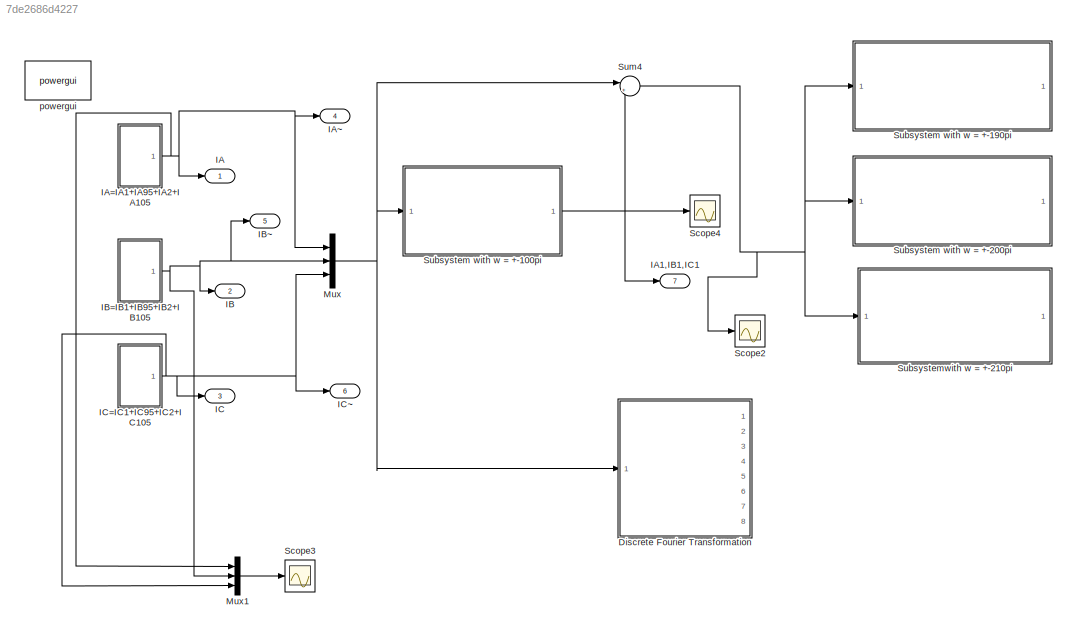
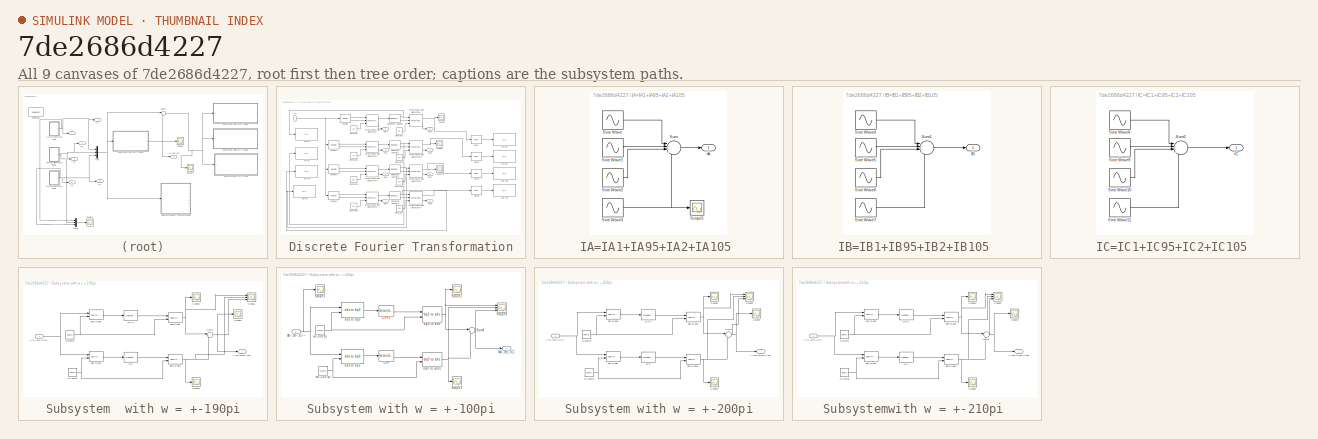
[diagram: thumbnail index - all 9 canvases of the model, root first then tree order]
MODEL slx_7de2686d4227
KIND model
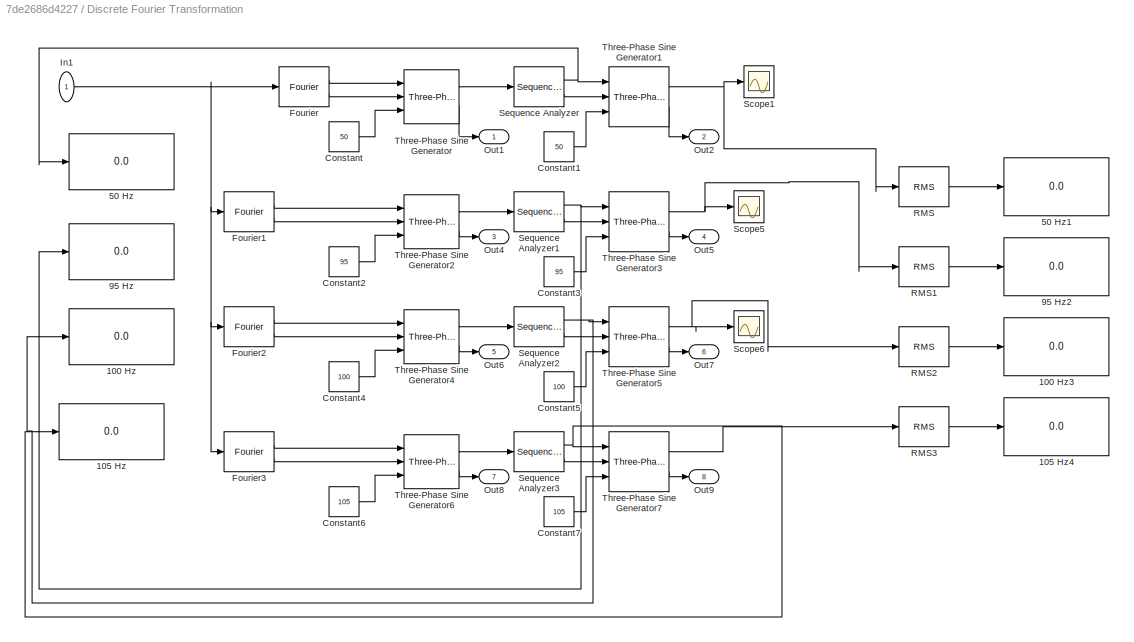
BLOCK [SubSystem] Discrete Fourier Transformation
  FunctionWithSeparateData = off
  MaskHideContents = off
  MinAlgLoopOccurrences = off
  Opaque = off
  Ports = [1, 8]
  PropExecContextOutsideSubsystem = off
  RTWSystemCode = Auto
  RequestExecContextInheritance = off
BLOCK [Display] Discrete Fourier Transformation/100 Hz
  Decimation = 1
  Lockdown = off
  Ports = [1]
BLOCK [Display] Discrete Fourier Transformation/100 Hz3
  Decimation = 1
  Lockdown = off
  Ports = [1]
BLOCK [Display] Discrete Fourier Transformation/105 Hz
  Decimation = 1
  Lockdown = off
  Ports = [1]
BLOCK [Display] Discrete Fourier Transformation/105 Hz4
  Decimation = 1
  Lockdown = off
  Ports = [1]
BLOCK [Display] Discrete Fourier Transformation/50 Hz
  Decimation = 1
  Lockdown = off
  Ports = [1]
BLOCK [Display] Discrete Fourier Transformation/50 Hz1
  Decimation = 1
  Lockdown = off
  Ports = [1]
BLOCK [Display] Discrete Fourier Transformation/95 Hz 
  Decimation = 1
  Lockdown = off
  Ports = [1]
BLOCK [Display] Discrete Fourier Transformation/95 Hz2
  Decimation = 1
  Lockdown = off
  Ports = [1]
BLOCK [Constant] Discrete Fourier Transformation/Constant
  Value = 50
BLOCK [Constant] Discrete Fourier Transformation/Constant1
  Value = 50
BLOCK [Constant] Discrete Fourier Transformation/Constant2
  Value = 95
BLOCK [Constant] Discrete Fourier Transformation/Constant3
  Value = 95
BLOCK [Constant] Discrete Fourier Transformation/Constant4
  Value = 100
BLOCK [Constant] Discrete Fourier Transformation/Constant5
  Value = 100
BLOCK [Constant] Discrete Fourier Transformation/Constant6
  Value = 105
BLOCK [Constant] Discrete Fourier Transformation/Constant7
  Value = 105
BLOCK [Reference] Discrete Fourier Transformation/Fourier  REF=powerlib_meascontrol/Measurements/Fourier
  Freq = 5
  InInit = [0, 0]
  Ports = [1, 2]
  SourceBlock = powerlib_meascontrol/Measurements/Fourier
  SourceType = Fourier
  Ts = 0
  n = 10
BLOCK [Reference] Discrete Fourier Transformation/Fourier1  REF=powerlib_meascontrol/Measurements/Fourier
  Freq = 5
  InInit = [0, 0]
  Ports = [1, 2]
  SourceBlock = powerlib_meascontrol/Measurements/Fourier
  SourceType = Fourier
  Ts = 0
  n = 19
BLOCK [Reference] Discrete Fourier Transformation/Fourier2  REF=powerlib_meascontrol/Measurements/Fourier
  Freq = 5
  InInit = [0, 0]
  Ports = [1, 2]
  SourceBlock = powerlib_meascontrol/Measurements/Fourier
  SourceType = Fourier
  Ts = 0
  n = 20
BLOCK [Reference] Discrete Fourier Transformation/Fourier3  REF=powerlib_meascontrol/Measurements/Fourier
  Freq = 5
  InInit = [0, 0]
  Ports = [1, 2]
  SourceBlock = powerlib_meascontrol/Measurements/Fourier
  SourceType = Fourier
  Ts = 0
  n = 21
BLOCK [Inport] Discrete Fourier Transformation/In1
  IconDisplay = Port number
BLOCK [Outport] Discrete Fourier Transformation/Out1
  IconDisplay = Port number
BLOCK [Outport] Discrete Fourier Transformation/Out2
  IconDisplay = Port number
  Port = 2
BLOCK [Outport] Discrete Fourier Transformation/Out4
  IconDisplay = Port number
  Port = 3
BLOCK [Outport] Discrete Fourier Transformation/Out5
  IconDisplay = Port number
  Port = 4
BLOCK [Outport] Discrete Fourier Transformation/Out6
  IconDisplay = Port number
  Port = 5
BLOCK [Outport] Discrete Fourier Transformation/Out7
  IconDisplay = Port number
  Port = 6
BLOCK [Outport] Discrete Fourier Transformation/Out8
  IconDisplay = Port number
  Port = 7
BLOCK [Outport] Discrete Fourier Transformation/Out9
  IconDisplay = Port number
  Port = 8
BLOCK [Reference] Discrete Fourier Transformation/RMS  REF=powerlib_meascontrol/Measurements/RMS
  Freq = 50
  Ports = [1, 1]
  RMSInit = 120
  SourceBlock = powerlib_meascontrol/Measurements/RMS
  SourceType = RMS
  TrueRMS = on
  Ts = 0
BLOCK [Reference] Discrete Fourier Transformation/RMS1  REF=powerlib_meascontrol/Measurements/RMS
  Freq = 95
  Ports = [1, 1]
  RMSInit = 120
  SourceBlock = powerlib_meascontrol/Measurements/RMS
  SourceType = RMS
  TrueRMS = on
  Ts = 0
BLOCK [Reference] Discrete Fourier Transformation/RMS2  REF=powerlib_meascontrol/Measurements/RMS
  Freq = 100
  Ports = [1, 1]
  RMSInit = 120
  SourceBlock = powerlib_meascontrol/Measurements/RMS
  SourceType = RMS
  TrueRMS = on
  Ts = 0
BLOCK [Reference] Discrete Fourier Transformation/RMS3  REF=powerlib_meascontrol/Measurements/RMS
  Freq = 105
  Ports = [1, 1]
  RMSInit = 120
  SourceBlock = powerlib_meascontrol/Measurements/RMS
  SourceType = RMS
  TrueRMS = on
  Ts = 0
BLOCK [Scope] Discrete Fourier Transformation/Scope1
  DataFormat = StructureWithTime
  Floating = off
  LimitDataPoints = off
  NumInputPorts = 1
  Ports = [1]
  SampleTime = 0
  ShowLegends = off
  YMax = 3000
  YMin = -3000
  ZoomMode = xonly
BLOCK [Scope] Discrete Fourier Transformation/Scope5
  DataFormat = StructureWithTime
  Floating = off
  LimitDataPoints = off
  NumInputPorts = 1
  Ports = [1]
  SampleTime = 0
  SaveName = ScopeData1
  ShowLegends = off
  YMax = 150
  YMin = -150
  ZoomMode = xonly
BLOCK [Scope] Discrete Fourier Transformation/Scope6
  DataFormat = StructureWithTime
  Floating = off
  LimitDataPoints = off
  NumInputPorts = 1
  Ports = [1]
  SampleTime = 0
  SaveName = ScopeData9
  ShowLegends = off
  YMax = 120
  YMin = -120
  ZoomMode = xonly
BLOCK [Reference] Discrete Fourier Transformation/Sequence Analyzer  REF=powerlib_meascontrol/Measurements/Sequence Analyzer
  Freq = 5
  InInit = [0, 0]
  Ports = [1, 2]
  SourceBlock = powerlib_meascontrol/Measurements/Sequence Analyzer
  SourceType = Sequence Analyzer
  Ts = 0
  n = 10
  seq = Positive Negative Zero
BLOCK [Reference] Discrete Fourier Transformation/Sequence Analyzer1  REF=powerlib_meascontrol/Measurements/Sequence Analyzer
  Freq = 5
  InInit = [0, 0]
  Ports = [1, 2]
  SourceBlock = powerlib_meascontrol/Measurements/Sequence Analyzer
  SourceType = Sequence Analyzer
  Ts = 0
  n = 19
  seq = Positive Negative Zero
BLOCK [Reference] Discrete Fourier Transformation/Sequence Analyzer2  REF=powerlib_meascontrol/Measurements/Sequence Analyzer
  Freq = 5
  InInit = [0, 0]
  Ports = [1, 2]
  SourceBlock = powerlib_meascontrol/Measurements/Sequence Analyzer
  SourceType = Sequence Analyzer
  Ts = 0
  n = 20
  seq = Positive Negative Zero
BLOCK [Reference] Discrete Fourier Transformation/Sequence Analyzer3  REF=powerlib_meascontrol/Measurements/Sequence Analyzer
  Freq = 5
  InInit = [0, 0]
  Ports = [1, 2]
  SourceBlock = powerlib_meascontrol/Measurements/Sequence Analyzer
  SourceType = Sequence Analyzer
  Ts = 0
  n = 21
  seq = Positive Negative Zero
BLOCK [Reference] Discrete Fourier Transformation/Three-Phase Sine Generator  REF=powerlib_meascontrol/Pulse & Signal
Generators/Three-Phase
Sine Generator
  Ports = [3, 2]
  SourceBlock = powerlib_meascontrol/Pulse & Signal\nGenerators/Three-Phase\nSine Generator
  SourceType = Three-phase Sine Generator
  Ts = 0
BLOCK [Reference] Discrete Fourier Transformation/Three-Phase Sine Generator1  REF=powerlib_meascontrol/Pulse & Signal
Generators/Three-Phase
Sine Generator
  Ports = [3, 2]
  SourceBlock = powerlib_meascontrol/Pulse & Signal\nGenerators/Three-Phase\nSine Generator
  SourceType = Three-phase Sine Generator
  Ts = 0
BLOCK [Reference] Discrete Fourier Transformation/Three-Phase Sine Generator2  REF=powerlib_meascontrol/Pulse & Signal
Generators/Three-Phase
Sine Generator
  Ports = [3, 2]
  SourceBlock = powerlib_meascontrol/Pulse & Signal\nGenerators/Three-Phase\nSine Generator
  SourceType = Three-phase Sine Generator
  Ts = 0
BLOCK [Reference] Discrete Fourier Transformation/Three-Phase Sine Generator3  REF=powerlib_meascontrol/Pulse & Signal
Generators/Three-Phase
Sine Generator
  Ports = [3, 2]
  SourceBlock = powerlib_meascontrol/Pulse & Signal\nGenerators/Three-Phase\nSine Generator
  SourceType = Three-phase Sine Generator
  Ts = 0
BLOCK [Reference] Discrete Fourier Transformation/Three-Phase Sine Generator4  REF=powerlib_meascontrol/Pulse & Signal
Generators/Three-Phase
Sine Generator
  Ports = [3, 2]
  SourceBlock = powerlib_meascontrol/Pulse & Signal\nGenerators/Three-Phase\nSine Generator
  SourceType = Three-phase Sine Generator
  Ts = 0
BLOCK [Reference] Discrete Fourier Transformation/Three-Phase Sine Generator5  REF=powerlib_meascontrol/Pulse & Signal
Generators/Three-Phase
Sine Generator
  Ports = [3, 2]
  SourceBlock = powerlib_meascontrol/Pulse & Signal\nGenerators/Three-Phase\nSine Generator
  SourceType = Three-phase Sine Generator
  Ts = 0
BLOCK [Reference] Discrete Fourier Transformation/Three-Phase Sine Generator6  REF=powerlib_meascontrol/Pulse & Signal
Generators/Three-Phase
Sine Generator
  Ports = [3, 2]
  SourceBlock = powerlib_meascontrol/Pulse & Signal\nGenerators/Three-Phase\nSine Generator
  SourceType = Three-phase Sine Generator
  Ts = 0
BLOCK [Reference] Discrete Fourier Transformation/Three-Phase Sine Generator7  REF=powerlib_meascontrol/Pulse & Signal
Generators/Three-Phase
Sine Generator
  Ports = [3, 2]
  SourceBlock = powerlib_meascontrol/Pulse & Signal\nGenerators/Three-Phase\nSine Generator
  SourceType = Three-phase Sine Generator
  Ts = 0
BLOCK [Outport] IA
  IconDisplay = Port number
BLOCK [Outport] IA1,IB1,IC1
  IconDisplay = Port number
  Port = 7
BLOCK [SubSystem] IA=IA1+IA95+IA2+IA105 
  FunctionWithSeparateData = off
  MaskHideContents = off
  MinAlgLoopOccurrences = off
  Opaque = off
  Ports = [0, 1]
  PropExecContextOutsideSubsystem = off
  RTWSystemCode = Auto
  RequestExecContextInheritance = off
BLOCK [Outport] IA=IA1+IA95+IA2+IA105 /IA
  IconDisplay = Port number
BLOCK [Scope] IA=IA1+IA95+IA2+IA105 /Scope3
  DataFormat = StructureWithTime
  Floating = off
  LimitDataPoints = off
  NumInputPorts = 1
  Ports = [1]
  SampleTime = 0
  SaveName = ScopeData16
  ShowLegends = off
  TimeRange = 0.2005801931657021
  YMax = 275
  YMin = -275
  ZoomMode = xonly
BLOCK [Sin] IA=IA1+IA95+IA2+IA105 /Sine Wave
  Amplitude = 1750*sqrt(2)
  Frequency = 100*pi
  Ports = [0, 1]
  SampleTime = 0
  VectorParams1D = off
BLOCK [Sin] IA=IA1+IA95+IA2+IA105 /Sine Wave1
  Amplitude = 190*sqrt(2)
  Frequency = 190*pi
  Ports = [0, 1]
  SampleTime = 0
  VectorParams1D = off
BLOCK [Sin] IA=IA1+IA95+IA2+IA105 /Sine Wave2
  Amplitude = 154*sqrt(2)
  Frequency = 200*pi
  Ports = [0, 1]
  SampleTime = 0
  VectorParams1D = off
BLOCK [Sin] IA=IA1+IA95+IA2+IA105 /Sine Wave3
  Amplitude = 180*sqrt(2)
  Frequency = 210*pi
  Ports = [0, 1]
  SampleTime = 0
  VectorParams1D = off
BLOCK [Sum] IA=IA1+IA95+IA2+IA105 /Sum
  IconShape = round
  InputSameDT = off
  Inputs = |++++
  OutDataTypeStr = Inherit: Inherit via internal rule
  Ports = [4, 1]
  SaturateOnIntegerOverflow = off
BLOCK [Outport] IA~ 
  IconDisplay = Port number
  Port = 4
BLOCK [Outport] IB 
  IconDisplay = Port number
  Port = 2
BLOCK [SubSystem] IB=IB1+IB95+IB2+IB105 
  FunctionWithSeparateData = off
  MaskHideContents = off
  MinAlgLoopOccurrences = off
  Opaque = off
  Ports = [0, 1]
  PropExecContextOutsideSubsystem = off
  RTWSystemCode = Auto
  RequestExecContextInheritance = off
BLOCK [Outport] IB=IB1+IB95+IB2+IB105 /IB 
  IconDisplay = Port number
BLOCK [Sin] IB=IB1+IB95+IB2+IB105 /Sine Wave4
  Amplitude = 1261.9*sqrt(2)
  Frequency = 100*pi
  Phase = -0.7439*pi
  Ports = [0, 1]
  SampleTime = 0
  VectorParams1D = off
BLOCK [Sin] IB=IB1+IB95+IB2+IB105 /Sine Wave5
  Amplitude = 95.4*sqrt(2)
  Frequency = 190*pi
  Phase = -0.9711*pi
  Ports = [0, 1]
  SampleTime = 0
  VectorParams1D = off
BLOCK [Sin] IB=IB1+IB95+IB2+IB105 /Sine Wave6
  Amplitude = 77.95*sqrt(2)
  Frequency = 200*pi
  Phase = -0.9503*pi
  Ports = [0, 1]
  SampleTime = 0
  VectorParams1D = off
BLOCK [Sin] IB=IB1+IB95+IB2+IB105 /Sine Wave7
  Amplitude = 96.4*sqrt(2)
  Frequency = 210*pi
  Phase = -0.883*pi
  Ports = [0, 1]
  SampleTime = 0
  VectorParams1D = off
BLOCK [Sum] IB=IB1+IB95+IB2+IB105 /Sum1
  IconShape = round
  InputSameDT = off
  Inputs = |++++
  OutDataTypeStr = Inherit: Inherit via internal rule
  Ports = [4, 1]
  SaturateOnIntegerOverflow = off
BLOCK [Outport] IB~
  IconDisplay = Port number
  Port = 5
BLOCK [Outport] IC 
  IconDisplay = Port number
  Port = 3
BLOCK [SubSystem] IC=IC1+IC95+IC2+IC105 
  FunctionWithSeparateData = off
  MaskHideContents = off
  MinAlgLoopOccurrences = off
  Opaque = off
  Ports = [0, 1]
  PropExecContextOutsideSubsystem = off
  RTWSystemCode = Auto
  RequestExecContextInheritance = off
BLOCK [Outport] IC=IC1+IC95+IC2+IC105 /IC 
  IconDisplay = Port number
BLOCK [Sin] IC=IC1+IC95+IC2+IC105 /Sine Wave10
  Amplitude = 77.95*sqrt(2)
  Frequency = 200*pi
  Phase = 0.9503*pi
  Ports = [0, 1]
  SampleTime = 0
  VectorParams1D = off
BLOCK [Sin] IC=IC1+IC95+IC2+IC105 /Sine Wave11
  Amplitude = 96.4*sqrt(2)
  Frequency = 210*pi
  Phase = 0.883*pi
  Ports = [0, 1]
  SampleTime = 0
  VectorParams1D = off
BLOCK [Sin] IC=IC1+IC95+IC2+IC105 /Sine Wave8
  Amplitude = 1261.9*sqrt(2)
  Frequency = 100*pi
  Phase = 0.7439*pi
  Ports = [0, 1]
  SampleTime = 0
  VectorParams1D = off
BLOCK [Sin] IC=IC1+IC95+IC2+IC105 /Sine Wave9
  Amplitude = 95.4*sqrt(2)
  Frequency = 190*pi
  Phase = 0.9711*pi
  Ports = [0, 1]
  SampleTime = 0
  VectorParams1D = off
BLOCK [Sum] IC=IC1+IC95+IC2+IC105 /Sum2
  IconShape = round
  InputSameDT = off
  Inputs = |++++
  OutDataTypeStr = Inherit: Inherit via internal rule
  Ports = [4, 1]
  SaturateOnIntegerOverflow = off
BLOCK [Outport] IC~
  IconDisplay = Port number
  Port = 6
BLOCK [Mux] Mux
  DisplayOption = bar
  Inputs = 3
  Ports = [3, 1]
BLOCK [Mux] Mux1
  DisplayOption = bar
  Inputs = 3
  Ports = [3, 1]
BLOCK [Scope] Scope2
  DataFormat = StructureWithTime
  Floating = off
  LimitDataPoints = off
  NumInputPorts = 1
  Ports = [1]
  SampleTime = 0
  SaveName = ScopeData5
  ShowLegends = off
  YMax = 1000
  YMin = -1000
  ZoomMode = xonly
BLOCK [Scope] Scope3
  DataFormat = StructureWithTime
  Floating = off
  LimitDataPoints = off
  NumInputPorts = 1
  Ports = [1]
  SampleTime = 0
  SaveName = ScopeData8
  ShowLegends = off
  TimeRange = 0.2005801931657021
  YMax = 3000
  YMin = -3000
  ZoomMode = xonly
BLOCK [Scope] Scope4
  DataFormat = StructureWithTime
  Floating = off
  LimitDataPoints = off
  NumInputPorts = 1
  Ports = [1]
  SampleTime = 0
  SaveName = ScopeData7
  ShowLegends = off
  YMax = 3000
  YMin = -3000
  ZoomMode = xonly
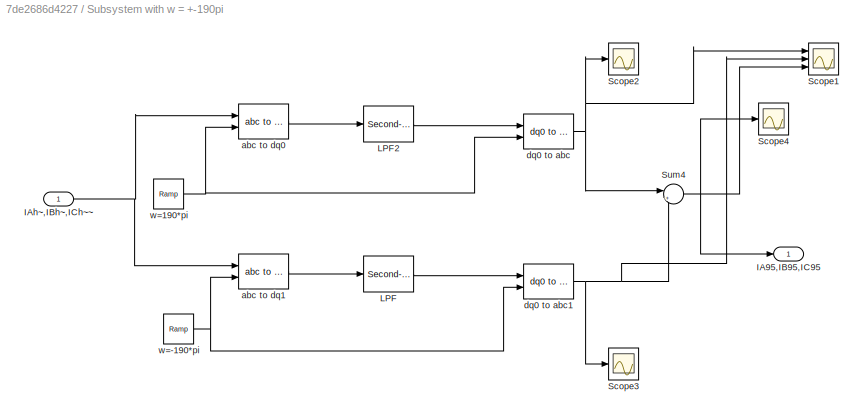
BLOCK [SubSystem] Subsystem  with w = +-190pi
  FunctionWithSeparateData = off
  MaskHideContents = off
  MinAlgLoopOccurrences = off
  Opaque = off
  Ports = [1, 1]
  PropExecContextOutsideSubsystem = off
  RTWSystemCode = Auto
  RequestExecContextInheritance = off
BLOCK [Outport] Subsystem  with w = +-190pi/IA95,IB95,IC95 
  IconDisplay = Port number
BLOCK [Inport] Subsystem  with w = +-190pi/IAh~,IBh~,ICh~~
  IconDisplay = Port number
BLOCK [Reference] Subsystem  with w = +-190pi/LPF  REF=powerlib_meascontrol/Filters/Second-Order
Filter
  FilterType = Lowpass
  Fo = 0.5
  FreqRange = [0, 500, 1]
  Initialize = on
  PlotResponse = off
  Ports = [1, 1]
  SourceBlock = powerlib_meascontrol/Filters/Second-Order\nFilter
  SourceType = Second-Order Filter
  Ts = 0
  Vac_Init = [0,  0,  60]
  Vdc_Init = 0
  Zeta = 0.707
BLOCK [Reference] Subsystem  with w = +-190pi/LPF2   REF=powerlib_meascontrol/Filters/Second-Order
Filter
  FilterType = Lowpass
  Fo = 0.5
  FreqRange = [0, 500, 1]
  Initialize = on
  PlotResponse = off
  Ports = [1, 1]
  SourceBlock = powerlib_meascontrol/Filters/Second-Order\nFilter
  SourceType = Second-Order Filter
  Ts = 0
  Vac_Init = [0,  0,  60]
  Vdc_Init = 0
  Zeta = 0.707
BLOCK [Scope] Subsystem  with w = +-190pi/Scope1
  DataFormat = StructureWithTime
  Floating = off
  LimitDataPoints = off
  NumInputPorts = 3
  Ports = [3]
  SampleTime = 0
  SaveName = ScopeData10
  ShowLegends = off
  YMax = 150~150~300
  YMin = -150~-150~-300
  ZoomMode = xonly
BLOCK [Scope] Subsystem  with w = +-190pi/Scope2
  DataFormat = StructureWithTime
  Floating = off
  LimitDataPoints = off
  NumInputPorts = 1
  Ports = [1]
  SampleTime = 0
  SaveName = ScopeData2
  ShowLegends = off
  YMax = 3000
  YMin = -3000
  ZoomMode = xonly
BLOCK [Scope] Subsystem  with w = +-190pi/Scope3
  DataFormat = StructureWithTime
  Floating = off
  LimitDataPoints = off
  NumInputPorts = 1
  Ports = [1]
  SampleTime = 0
  SaveName = ScopeData3
  ShowLegends = off
  YMax = 3000
  YMin = -3000
  ZoomMode = xonly
BLOCK [Scope] Subsystem  with w = +-190pi/Scope4
  DataFormat = StructureWithTime
  Floating = off
  LimitDataPoints = off
  NumInputPorts = 1
  Ports = [1]
  SampleTime = 0
  SaveName = ScopeData4
  ShowLegends = off
  YMax = 3000
  YMin = -3000
  ZoomMode = xonly
BLOCK [Sum] Subsystem  with w = +-190pi/Sum4
  IconShape = round
  InputSameDT = off
  Inputs = |++
  OutDataTypeStr = Inherit: Inherit via internal rule
  Ports = [2, 1]
  SaturateOnIntegerOverflow = off
BLOCK [Reference] Subsystem  with w = +-190pi/abc to dq0  REF=powerlib_meascontrol/Transformations/abc to dq0
  Alignment = 90 degrees behind phase A axis
  Ports = [2, 1]
  SourceBlock = powerlib_meascontrol/Transformations/abc to dq0
  SourceType = abc to dq0 Transformation
BLOCK [Reference] Subsystem  with w = +-190pi/abc to dq1  REF=powerlib_meascontrol/Transformations/abc to dq0
  Alignment = 90 degrees behind phase A axis
  Ports = [2, 1]
  SourceBlock = powerlib_meascontrol/Transformations/abc to dq0
  SourceType = abc to dq0 Transformation
BLOCK [Reference] Subsystem  with w = +-190pi/dq0 to abc  REF=powerlib_meascontrol/Transformations/dq0 to abc
  Alignment = 90 degrees behind phase A axis
  Ports = [2, 1]
  SourceBlock = powerlib_meascontrol/Transformations/dq0 to abc
  SourceType = dq0 to abc Transformation
BLOCK [Reference] Subsystem  with w = +-190pi/dq0 to abc1  REF=powerlib_meascontrol/Transformations/dq0 to abc
  Alignment = 90 degrees behind phase A axis
  Ports = [2, 1]
  SourceBlock = powerlib_meascontrol/Transformations/dq0 to abc
  SourceType = dq0 to abc Transformation
BLOCK [Reference] Subsystem  with w = +-190pi/w=-190*pi   REF=simulink/Sources/Ramp
  Ports = [0, 1]
  SourceBlock = simulink/Sources/Ramp
  SourceType = Ramp
  VectorParams1D = on
  X0 = 0
  slope = -190*pi
  start = 0
BLOCK [Reference] Subsystem  with w = +-190pi/w=190*pi   REF=simulink/Sources/Ramp
  Ports = [0, 1]
  SourceBlock = simulink/Sources/Ramp
  SourceType = Ramp
  VectorParams1D = on
  X0 = 0
  slope = 190*pi
  start = 0
BLOCK [SubSystem] Subsystem with w = +-100pi
  FunctionWithSeparateData = off
  MaskHideContents = off
  MinAlgLoopOccurrences = off
  Opaque = off
  Ports = [1, 1]
  PropExecContextOutsideSubsystem = off
  RTWSystemCode = Auto
  RequestExecContextInheritance = off
BLOCK [Outport] Subsystem with w = +-100pi/IA1,IB1,IC1
  IconDisplay = Port number
BLOCK [Inport] Subsystem with w = +-100pi/IA~,IB~,IC~~
  IconDisplay = Port number
BLOCK [Reference] Subsystem with w = +-100pi/LPF  REF=powerlib_meascontrol/Filters/Second-Order
Filter
  FilterType = Lowpass
  Fo = 2.5
  FreqRange = [0, 500, 1]
  Initialize = on
  PlotResponse = off
  Ports = [1, 1]
  SourceBlock = powerlib_meascontrol/Filters/Second-Order\nFilter
  SourceType = Second-Order Filter
  Ts = 0
  Vac_Init = [0,  0,  60]
  Vdc_Init = 0
  Zeta = 0.707
BLOCK [Reference] Subsystem with w = +-100pi/LPF2   REF=powerlib_meascontrol/Filters/Second-Order
Filter
  FilterType = Lowpass
  Fo = 2.5
  FreqRange = [0, 500, 1]
  Initialize = on
  PlotResponse = off
  Ports = [1, 1]
  SourceBlock = powerlib_meascontrol/Filters/Second-Order\nFilter
  SourceType = Second-Order Filter
  Ts = 0
  Vac_Init = [0,  0,  60]
  Vdc_Init = 0
  Zeta = 0.707
BLOCK [Scope] Subsystem with w = +-100pi/Scope1
  DataFormat = StructureWithTime
  Floating = off
  LimitDataPoints = off
  NumInputPorts = 1
  Ports = [1]
  SampleTime = 0
  SaveName = ScopeData6
  ShowLegends = off
  TimeRange = 0.2014563939396098
  YMax = 3000
  YMin = -3000
  ZoomMode = xonly
BLOCK [Scope] Subsystem with w = +-100pi/Scope2
  DataFormat = StructureWithTime
  Floating = off
  LimitDataPoints = off
  NumInputPorts = 1
  Ports = [1]
  SampleTime = 0
  SaveName = ScopeData2
  ShowLegends = off
  YMax = 3000
  YMin = -3000
  ZoomMode = xonly
BLOCK [Scope] Subsystem with w = +-100pi/Scope3
  DataFormat = StructureWithTime
  Floating = off
  LimitDataPoints = off
  NumInputPorts = 1
  Ports = [1]
  SampleTime = 0
  SaveName = ScopeData3
  ShowLegends = off
  YMax = 3000
  YMin = -3000
  ZoomMode = xonly
BLOCK [Scope] Subsystem with w = +-100pi/Scope4
  DataFormat = StructureWithTime
  Floating = off
  LimitDataPoints = off
  NumInputPorts = 3
  Ports = [3]
  SampleTime = 0
  SaveName = ScopeData4
  SaveToWorkspace = on
  ShowLegends = off
  TimeRange = 0.200993419768845
  YMax = 3000~750~3000
  YMin = -3000~-750~-3000
  ZoomMode = xonly
BLOCK [Sum] Subsystem with w = +-100pi/Sum4
  IconShape = round
  InputSameDT = off
  Inputs = |++
  OutDataTypeStr = Inherit: Inherit via internal rule
  Ports = [2, 1]
  SaturateOnIntegerOverflow = off
BLOCK [Reference] Subsystem with w = +-100pi/abc to dq0  REF=powerlib_meascontrol/Transformations/abc to dq0
  Alignment = 90 degrees behind phase A axis
  Ports = [2, 1]
  SourceBlock = powerlib_meascontrol/Transformations/abc to dq0
  SourceType = abc to dq0 Transformation
BLOCK [Reference] Subsystem with w = +-100pi/abc to dq1  REF=powerlib_meascontrol/Transformations/abc to dq0
  Alignment = 90 degrees behind phase A axis
  Ports = [2, 1]
  SourceBlock = powerlib_meascontrol/Transformations/abc to dq0
  SourceType = abc to dq0 Transformation
BLOCK [Reference] Subsystem with w = +-100pi/dq0 to abc  REF=powerlib_meascontrol/Transformations/dq0 to abc
  Alignment = 90 degrees behind phase A axis
  Ports = [2, 1]
  SourceBlock = powerlib_meascontrol/Transformations/dq0 to abc
  SourceType = dq0 to abc Transformation
BLOCK [Reference] Subsystem with w = +-100pi/dq0 to abc1  REF=powerlib_meascontrol/Transformations/dq0 to abc
  Alignment = 90 degrees behind phase A axis
  Ports = [2, 1]
  SourceBlock = powerlib_meascontrol/Transformations/dq0 to abc
  SourceType = dq0 to abc Transformation
BLOCK [Reference] Subsystem with w = +-100pi/w=-100*pi   REF=simulink/Sources/Ramp
  Ports = [0, 1]
  SourceBlock = simulink/Sources/Ramp
  SourceType = Ramp
  VectorParams1D = on
  X0 = 0
  slope = -100*pi
  start = 0
BLOCK [Reference] Subsystem with w = +-100pi/w=100*pi   REF=simulink/Sources/Ramp
  Ports = [0, 1]
  SourceBlock = simulink/Sources/Ramp
  SourceType = Ramp
  VectorParams1D = on
  X0 = 0
  slope = 100*pi
  start = 0
BLOCK [SubSystem] Subsystem with w = +-200pi
  FunctionWithSeparateData = off
  MaskHideContents = off
  MinAlgLoopOccurrences = off
  Opaque = off
  Ports = [1, 1]
  PropExecContextOutsideSubsystem = off
  RTWSystemCode = Auto
  RequestExecContextInheritance = off
BLOCK [Outport] Subsystem with w = +-200pi/IA100,IB100,IC100 
  IconDisplay = Port number
BLOCK [Inport] Subsystem with w = +-200pi/IAh~,IBh~,ICh~~
  IconDisplay = Port number
BLOCK [Reference] Subsystem with w = +-200pi/LPF  REF=powerlib_meascontrol/Filters/Second-Order
Filter
  FilterType = Lowpass
  Fo = 0.5
  FreqRange = [0, 500, 1]
  Initialize = on
  PlotResponse = off
  Ports = [1, 1]
  SourceBlock = powerlib_meascontrol/Filters/Second-Order\nFilter
  SourceType = Second-Order Filter
  Ts = 0
  Vac_Init = [0,  0,  60]
  Vdc_Init = 0
  Zeta = 0.707
BLOCK [Reference] Subsystem with w = +-200pi/LPF2   REF=powerlib_meascontrol/Filters/Second-Order
Filter
  FilterType = Lowpass
  Fo = 0.5
  FreqRange = [0, 500, 1]
  Initialize = on
  PlotResponse = off
  Ports = [1, 1]
  SourceBlock = powerlib_meascontrol/Filters/Second-Order\nFilter
  SourceType = Second-Order Filter
  Ts = 0
  Vac_Init = [0,  0,  60]
  Vdc_Init = 0
  Zeta = 0.707
BLOCK [Scope] Subsystem with w = +-200pi/Scope1
  DataFormat = StructureWithTime
  Floating = off
  LimitDataPoints = off
  NumInputPorts = 3
  Ports = [3]
  SampleTime = 0
  SaveName = ScopeData11
  ShowLegends = off
  YMax = 125~90~5
  YMin = -100~-70~-5
  ZoomMode = xonly
BLOCK [Scope] Subsystem with w = +-200pi/Scope2
  DataFormat = StructureWithTime
  Floating = off
  LimitDataPoints = off
  NumInputPorts = 1
  Ports = [1]
  SampleTime = 0
  SaveName = ScopeData2
  ShowLegends = off
  YMax = 3000
  YMin = -3000
  ZoomMode = xonly
BLOCK [Scope] Subsystem with w = +-200pi/Scope3
  DataFormat = StructureWithTime
  Floating = off
  LimitDataPoints = off
  NumInputPorts = 1
  Ports = [1]
  SampleTime = 0
  SaveName = ScopeData3
  ShowLegends = off
  YMax = 3000
  YMin = -3000
  ZoomMode = xonly
BLOCK [Scope] Subsystem with w = +-200pi/Scope4
  DataFormat = StructureWithTime
  Floating = off
  LimitDataPoints = off
  NumInputPorts = 1
  Ports = [1]
  SampleTime = 0
  SaveName = ScopeData4
  ShowLegends = off
  YMax = 3000
  YMin = -3000
  ZoomMode = xonly
BLOCK [Sum] Subsystem with w = +-200pi/Sum4
  IconShape = round
  InputSameDT = off
  Inputs = |++
  OutDataTypeStr = Inherit: Inherit via internal rule
  Ports = [2, 1]
  SaturateOnIntegerOverflow = off
BLOCK [Reference] Subsystem with w = +-200pi/abc to dq0  REF=powerlib_meascontrol/Transformations/abc to dq0
  Alignment = 90 degrees behind phase A axis
  Ports = [2, 1]
  SourceBlock = powerlib_meascontrol/Transformations/abc to dq0
  SourceType = abc to dq0 Transformation
BLOCK [Reference] Subsystem with w = +-200pi/abc to dq1  REF=powerlib_meascontrol/Transformations/abc to dq0
  Alignment = 90 degrees behind phase A axis
  Ports = [2, 1]
  SourceBlock = powerlib_meascontrol/Transformations/abc to dq0
  SourceType = abc to dq0 Transformation
BLOCK [Reference] Subsystem with w = +-200pi/dq0 to abc  REF=powerlib_meascontrol/Transformations/dq0 to abc
  Alignment = 90 degrees behind phase A axis
  Ports = [2, 1]
  SourceBlock = powerlib_meascontrol/Transformations/dq0 to abc
  SourceType = dq0 to abc Transformation
BLOCK [Reference] Subsystem with w = +-200pi/dq0 to abc1  REF=powerlib_meascontrol/Transformations/dq0 to abc
  Alignment = 90 degrees behind phase A axis
  Ports = [2, 1]
  SourceBlock = powerlib_meascontrol/Transformations/dq0 to abc
  SourceType = dq0 to abc Transformation
BLOCK [Reference] Subsystem with w = +-200pi/w=-200*pi   REF=simulink/Sources/Ramp
  Ports = [0, 1]
  SourceBlock = simulink/Sources/Ramp
  SourceType = Ramp
  VectorParams1D = on
  X0 = 0
  slope = -200*pi
  start = 0
BLOCK [Reference] Subsystem with w = +-200pi/w=200*pi   REF=simulink/Sources/Ramp
  Ports = [0, 1]
  SourceBlock = simulink/Sources/Ramp
  SourceType = Ramp
  VectorParams1D = on
  X0 = 0
  slope = 200*pi
  start = 0
BLOCK [SubSystem] Subsystemwith w = +-210pi 
  FunctionWithSeparateData = off
  MaskHideContents = off
  MinAlgLoopOccurrences = off
  Opaque = off
  Ports = [1, 1]
  PropExecContextOutsideSubsystem = off
  RTWSystemCode = Auto
  RequestExecContextInheritance = off
BLOCK [Outport] Subsystemwith w = +-210pi /IA105,IB105,IC105 
  IconDisplay = Port number
BLOCK [Inport] Subsystemwith w = +-210pi /IAh~,IBh~,ICh~~
  IconDisplay = Port number
BLOCK [Reference] Subsystemwith w = +-210pi /LPF  REF=powerlib_meascontrol/Filters/Second-Order
Filter
  FilterType = Lowpass
  Fo = 0.5
  FreqRange = [0, 500, 1]
  Initialize = on
  PlotResponse = off
  Ports = [1, 1]
  SourceBlock = powerlib_meascontrol/Filters/Second-Order\nFilter
  SourceType = Second-Order Filter
  Ts = 0
  Vac_Init = [0,  0,  60]
  Vdc_Init = 0
  Zeta = 0.707
BLOCK [Reference] Subsystemwith w = +-210pi /LPF2   REF=powerlib_meascontrol/Filters/Second-Order
Filter
  FilterType = Lowpass
  Fo = 0.5
  FreqRange = [0, 500, 1]
  Initialize = on
  PlotResponse = off
  Ports = [1, 1]
  SourceBlock = powerlib_meascontrol/Filters/Second-Order\nFilter
  SourceType = Second-Order Filter
  Ts = 0
  Vac_Init = [0,  0,  60]
  Vdc_Init = 0
  Zeta = 0.707
BLOCK [Scope] Subsystemwith w = +-210pi /Scope1
  DataFormat = StructureWithTime
  Floating = off
  LimitDataPoints = off
  NumInputPorts = 3
  Ports = [3]
  SampleTime = 0
  SaveName = ScopeData12
  ShowLegends = off
  YMax = 175~125~300
  YMin = -175~-125~-300
  ZoomMode = xonly
BLOCK [Scope] Subsystemwith w = +-210pi /Scope2
  DataFormat = StructureWithTime
  Floating = off
  LimitDataPoints = off
  NumInputPorts = 1
  Ports = [1]
  SampleTime = 0
  SaveName = ScopeData2
  ShowLegends = off
  YMax = 3000
  YMin = -3000
  ZoomMode = xonly
BLOCK [Scope] Subsystemwith w = +-210pi /Scope3
  DataFormat = StructureWithTime
  Floating = off
  LimitDataPoints = off
  NumInputPorts = 1
  Ports = [1]
  SampleTime = 0
  SaveName = ScopeData3
  ShowLegends = off
  YMax = 3000
  YMin = -3000
  ZoomMode = xonly
BLOCK [Scope] Subsystemwith w = +-210pi /Scope4
  DataFormat = StructureWithTime
  Floating = off
  LimitDataPoints = off
  NumInputPorts = 1
  Ports = [1]
  SampleTime = 0
  SaveName = ScopeData4
  ShowLegends = off
  YMax = 3000
  YMin = -3000
  ZoomMode = xonly
BLOCK [Sum] Subsystemwith w = +-210pi /Sum4
  IconShape = round
  InputSameDT = off
  Inputs = |++
  OutDataTypeStr = Inherit: Inherit via internal rule
  Ports = [2, 1]
  SaturateOnIntegerOverflow = off
BLOCK [Reference] Subsystemwith w = +-210pi /abc to dq0  REF=powerlib_meascontrol/Transformations/abc to dq0
  Alignment = 90 degrees behind phase A axis
  Ports = [2, 1]
  SourceBlock = powerlib_meascontrol/Transformations/abc to dq0
  SourceType = abc to dq0 Transformation
BLOCK [Reference] Subsystemwith w = +-210pi /abc to dq1  REF=powerlib_meascontrol/Transformations/abc to dq0
  Alignment = 90 degrees behind phase A axis
  Ports = [2, 1]
  SourceBlock = powerlib_meascontrol/Transformations/abc to dq0
  SourceType = abc to dq0 Transformation
BLOCK [Reference] Subsystemwith w = +-210pi /dq0 to abc  REF=powerlib_meascontrol/Transformations/dq0 to abc
  Alignment = 90 degrees behind phase A axis
  Ports = [2, 1]
  SourceBlock = powerlib_meascontrol/Transformations/dq0 to abc
  SourceType = dq0 to abc Transformation
BLOCK [Reference] Subsystemwith w = +-210pi /dq0 to abc1  REF=powerlib_meascontrol/Transformations/dq0 to abc
  Alignment = 90 degrees behind phase A axis
  Ports = [2, 1]
  SourceBlock = powerlib_meascontrol/Transformations/dq0 to abc
  SourceType = dq0 to abc Transformation
BLOCK [Reference] Subsystemwith w = +-210pi /w=-210*pi   REF=simulink/Sources/Ramp
  Ports = [0, 1]
  SourceBlock = simulink/Sources/Ramp
  SourceType = Ramp
  VectorParams1D = on
  X0 = 0
  slope = -210*pi
  start = 0
BLOCK [Reference] Subsystemwith w = +-210pi /w=210*pi   REF=simulink/Sources/Ramp
  Ports = [0, 1]
  SourceBlock = simulink/Sources/Ramp
  SourceType = Ramp
  VectorParams1D = on
  X0 = 0
  slope = 210*pi
  start = 0
BLOCK [Sum] Sum4
  IconShape = round
  InputSameDT = off
  Inputs = |+-
  OutDataTypeStr = Inherit: Inherit via internal rule
  Ports = [2, 1]
  SaturateOnIntegerOverflow = off
BLOCK [Reference] powergui  REF=powerlib/powergui
  DisableRonSwitches = off
  DisableSnubberDevices = off
  DisableVfSwitches = off
  DisplayEquations = off
  DisplayStyle = 1
  EnableUseOfTLC = off
  ErrMax = 1e-4
  Frange = [0:2:500]
  FreqAxis = off
  FunctionMessages = off
  HookPort = off
  Interpol = off
  Iterations = 50
  MaxFrequency = 1000
  Pbase = 100e6
  Ports = []
  Priority = 1
  ResistiveCurrentMeasurement = off
  RestoreLinks = warning
  RmsSteady = 1
  SPID = off
  SampleTime = 50e-6
  ShowGrid = off
  SolverType = Tustin
  SourceBlock = powerlib/powergui
  SourceType = PSB option menu block
  StartTime = 0.0
  SwTol = 0
  Ts = 0
  UnitsV = kV
  UnitsW = MW
  UserDataPersistent = on
  Xlog = on
  Ylog = off
  ZoomFFT = off
  cycles = 1
  display = off
  echomessages = off
  frequency = 60
  frequencyindice = 50
  frequencyindicesteady = 1
  fundamental = 60
  methode = off
  save = off
  variable = ZData
  x0status = blocks
LINE Discrete Fourier Transformation/Constant1:1 -> Discrete Fourier Transformation/Three-Phase Sine Generator1:3
LINE Discrete Fourier Transformation/Constant2:1 -> Discrete Fourier Transformation/Three-Phase Sine Generator2:3
LINE Discrete Fourier Transformation/Constant3:1 -> Discrete Fourier Transformation/Three-Phase Sine Generator3:3
LINE Discrete Fourier Transformation/Constant4:1 -> Discrete Fourier Transformation/Three-Phase Sine Generator4:3
LINE Discrete Fourier Transformation/Constant5:1 -> Discrete Fourier Transformation/Three-Phase Sine Generator5:3
LINE Discrete Fourier Transformation/Constant6:1 -> Discrete Fourier Transformation/Three-Phase Sine Generator6:3
LINE Discrete Fourier Transformation/Constant7:1 -> Discrete Fourier Transformation/Three-Phase Sine Generator7:3
LINE Discrete Fourier Transformation/Constant:1 -> Discrete Fourier Transformation/Three-Phase Sine Generator:3
LINE Discrete Fourier Transformation/Fourier1:1 -> Discrete Fourier Transformation/Three-Phase Sine Generator2:1
LINE Discrete Fourier Transformation/Fourier1:2 -> Discrete Fourier Transformation/Three-Phase Sine Generator2:2
LINE Discrete Fourier Transformation/Fourier2:1 -> Discrete Fourier Transformation/Three-Phase Sine Generator4:1
LINE Discrete Fourier Transformation/Fourier2:2 -> Discrete Fourier Transformation/Three-Phase Sine Generator4:2
LINE Discrete Fourier Transformation/Fourier3:1 -> Discrete Fourier Transformation/Three-Phase Sine Generator6:1
LINE Discrete Fourier Transformation/Fourier3:2 -> Discrete Fourier Transformation/Three-Phase Sine Generator6:2
LINE Discrete Fourier Transformation/Fourier:1 -> Discrete Fourier Transformation/Three-Phase Sine Generator:1
LINE Discrete Fourier Transformation/Fourier:2 -> Discrete Fourier Transformation/Three-Phase Sine Generator:2
NET Discrete Fourier Transformation/In1:1 -> Discrete Fourier Transformation/Fourier1:1, Discrete Fourier Transformation/Fourier2:1, Discrete Fourier Transformation/Fourier3:1, Discrete Fourier Transformation/Fourier:1
LINE Discrete Fourier Transformation/RMS1:1 -> Discrete Fourier Transformation/95 Hz2:1
LINE Discrete Fourier Transformation/RMS2:1 -> Discrete Fourier Transformation/100 Hz3:1
LINE Discrete Fourier Transformation/RMS3:1 -> Discrete Fourier Transformation/105 Hz4:1
LINE Discrete Fourier Transformation/RMS:1 -> Discrete Fourier Transformation/50 Hz1:1
NET Discrete Fourier Transformation/Sequence Analyzer1:1 -> Discrete Fourier Transformation/95 Hz :1, Discrete Fourier Transformation/Three-Phase Sine Generator3:1
LINE Discrete Fourier Transformation/Sequence Analyzer1:2 -> Discrete Fourier Transformation/Three-Phase Sine Generator3:2
NET Discrete Fourier Transformation/Sequence Analyzer2:1 -> Discrete Fourier Transformation/100 Hz:1, Discrete Fourier Transformation/Three-Phase Sine Generator5:1
LINE Discrete Fourier Transformation/Sequence Analyzer2:2 -> Discrete Fourier Transformation/Three-Phase Sine Generator5:2
NET Discrete Fourier Transformation/Sequence Analyzer3:1 -> Discrete Fourier Transformation/105 Hz:1, Discrete Fourier Transformation/Three-Phase Sine Generator7:1
LINE Discrete Fourier Transformation/Sequence Analyzer3:2 -> Discrete Fourier Transformation/Three-Phase Sine Generator7:2
NET Discrete Fourier Transformation/Sequence Analyzer:1 -> Discrete Fourier Transformation/50 Hz:1, Discrete Fourier Transformation/Three-Phase Sine Generator1:1
LINE Discrete Fourier Transformation/Sequence Analyzer:2 -> Discrete Fourier Transformation/Three-Phase Sine Generator1:2
NET Discrete Fourier Transformation/Three-Phase Sine Generator1:1 -> Discrete Fourier Transformation/RMS:1, Discrete Fourier Transformation/Scope1:1
LINE Discrete Fourier Transformation/Three-Phase Sine Generator1:2 -> Discrete Fourier Transformation/Out2:1
LINE Discrete Fourier Transformation/Three-Phase Sine Generator2:1 -> Discrete Fourier Transformation/Sequence Analyzer1:1
LINE Discrete Fourier Transformation/Three-Phase Sine Generator2:2 -> Discrete Fourier Transformation/Out4:1
NET Discrete Fourier Transformation/Three-Phase Sine Generator3:1 -> Discrete Fourier Transformation/RMS1:1, Discrete Fourier Transformation/Scope5:1
LINE Discrete Fourier Transformation/Three-Phase Sine Generator3:2 -> Discrete Fourier Transformation/Out5:1
LINE Discrete Fourier Transformation/Three-Phase Sine Generator4:1 -> Discrete Fourier Transformation/Sequence Analyzer2:1
LINE Discrete Fourier Transformation/Three-Phase Sine Generator4:2 -> Discrete Fourier Transformation/Out6:1
NET Discrete Fourier Transformation/Three-Phase Sine Generator5:1 -> Discrete Fourier Transformation/RMS2:1, Discrete Fourier Transformation/Scope6:1
LINE Discrete Fourier Transformation/Three-Phase Sine Generator5:2 -> Discrete Fourier Transformation/Out7:1
LINE Discrete Fourier Transformation/Three-Phase Sine Generator6:1 -> Discrete Fourier Transformation/Sequence Analyzer3:1
LINE Discrete Fourier Transformation/Three-Phase Sine Generator6:2 -> Discrete Fourier Transformation/Out8:1
LINE Discrete Fourier Transformation/Three-Phase Sine Generator7:1 -> Discrete Fourier Transformation/RMS3:1
LINE Discrete Fourier Transformation/Three-Phase Sine Generator7:2 -> Discrete Fourier Transformation/Out9:1
LINE Discrete Fourier Transformation/Three-Phase Sine Generator:1 -> Discrete Fourier Transformation/Sequence Analyzer:1
LINE Discrete Fourier Transformation/Three-Phase Sine Generator:2 -> Discrete Fourier Transformation/Out1:1
LINE IA=IA1+IA95+IA2+IA105 /Sine Wave1:1 -> IA=IA1+IA95+IA2+IA105 /Sum:2
LINE IA=IA1+IA95+IA2+IA105 /Sine Wave2:1 -> IA=IA1+IA95+IA2+IA105 /Sum:3
NET IA=IA1+IA95+IA2+IA105 /Sine Wave3:1 -> IA=IA1+IA95+IA2+IA105 /Scope3:1, IA=IA1+IA95+IA2+IA105 /Sum:4
LINE IA=IA1+IA95+IA2+IA105 /Sine Wave:1 -> IA=IA1+IA95+IA2+IA105 /Sum:1
LINE IA=IA1+IA95+IA2+IA105 /Sum:1 -> IA=IA1+IA95+IA2+IA105 /IA:1
NET IA=IA1+IA95+IA2+IA105 :1 -> IA:1, IA~ :1, Mux1:1, Mux:1
LINE IB=IB1+IB95+IB2+IB105 /Sine Wave4:1 -> IB=IB1+IB95+IB2+IB105 /Sum1:1
LINE IB=IB1+IB95+IB2+IB105 /Sine Wave5:1 -> IB=IB1+IB95+IB2+IB105 /Sum1:2
LINE IB=IB1+IB95+IB2+IB105 /Sine Wave6:1 -> IB=IB1+IB95+IB2+IB105 /Sum1:3
LINE IB=IB1+IB95+IB2+IB105 /Sine Wave7:1 -> IB=IB1+IB95+IB2+IB105 /Sum1:4
LINE IB=IB1+IB95+IB2+IB105 /Sum1:1 -> IB=IB1+IB95+IB2+IB105 /IB :1
NET IB=IB1+IB95+IB2+IB105 :1 -> IB :1, IB~:1, Mux1:2, Mux:2
LINE IC=IC1+IC95+IC2+IC105 /Sine Wave10:1 -> IC=IC1+IC95+IC2+IC105 /Sum2:3
LINE IC=IC1+IC95+IC2+IC105 /Sine Wave11:1 -> IC=IC1+IC95+IC2+IC105 /Sum2:4
LINE IC=IC1+IC95+IC2+IC105 /Sine Wave8:1 -> IC=IC1+IC95+IC2+IC105 /Sum2:1
LINE IC=IC1+IC95+IC2+IC105 /Sine Wave9:1 -> IC=IC1+IC95+IC2+IC105 /Sum2:2
LINE IC=IC1+IC95+IC2+IC105 /Sum2:1 -> IC=IC1+IC95+IC2+IC105 /IC :1
NET IC=IC1+IC95+IC2+IC105 :1 -> IC :1, IC~:1, Mux1:3, Mux:3
LINE Mux1:1 -> Scope3:1
NET Mux:1 -> Discrete Fourier Transformation:1, Subsystem with w = +-100pi:1, Sum4:1
NET Subsystem  with w = +-190pi/IAh~,IBh~,ICh~~:1 -> Subsystem  with w = +-190pi/abc to dq0:1, Subsystem  with w = +-190pi/abc to dq1:1
LINE Subsystem  with w = +-190pi/LPF2 :1 -> Subsystem  with w = +-190pi/dq0 to abc:1
LINE Subsystem  with w = +-190pi/LPF:1 -> Subsystem  with w = +-190pi/dq0 to abc1:1
NET Subsystem  with w = +-190pi/Sum4:1 -> Subsystem  with w = +-190pi/IA95,IB95,IC95 :1, Subsystem  with w = +-190pi/Scope1:3, Subsystem  with w = +-190pi/Scope4:1
LINE Subsystem  with w = +-190pi/abc to dq0:1 -> Subsystem  with w = +-190pi/LPF2 :1
LINE Subsystem  with w = +-190pi/abc to dq1:1 -> Subsystem  with w = +-190pi/LPF:1
NET Subsystem  with w = +-190pi/dq0 to abc1:1 -> Subsystem  with w = +-190pi/Scope1:2, Subsystem  with w = +-190pi/Scope3:1, Subsystem  with w = +-190pi/Sum4:2
NET Subsystem  with w = +-190pi/dq0 to abc:1 -> Subsystem  with w = +-190pi/Scope1:1, Subsystem  with w = +-190pi/Scope2:1, Subsystem  with w = +-190pi/Sum4:1
NET Subsystem  with w = +-190pi/w=-190*pi :1 -> Subsystem  with w = +-190pi/abc to dq1:2, Subsystem  with w = +-190pi/dq0 to abc1:2
NET Subsystem  with w = +-190pi/w=190*pi :1 -> Subsystem  with w = +-190pi/abc to dq0:2, Subsystem  with w = +-190pi/dq0 to abc:2
NET Subsystem with w = +-100pi/IA~,IB~,IC~~:1 -> Subsystem with w = +-100pi/Scope1:1, Subsystem with w = +-100pi/abc to dq0:1, Subsystem with w = +-100pi/abc to dq1:1
LINE Subsystem with w = +-100pi/LPF2 :1 -> Subsystem with w = +-100pi/dq0 to abc:1
LINE Subsystem with w = +-100pi/LPF:1 -> Subsystem with w = +-100pi/dq0 to abc1:1
NET Subsystem with w = +-100pi/Sum4:1 -> Subsystem with w = +-100pi/IA1,IB1,IC1:1, Subsystem with w = +-100pi/Scope4:3
LINE Subsystem with w = +-100pi/abc to dq0:1 -> Subsystem with w = +-100pi/LPF2 :1
LINE Subsystem with w = +-100pi/abc to dq1:1 -> Subsystem with w = +-100pi/LPF:1
NET Subsystem with w = +-100pi/dq0 to abc1:1 -> Subsystem with w = +-100pi/Scope3:1, Subsystem with w = +-100pi/Scope4:2, Subsystem with w = +-100pi/Sum4:2
NET Subsystem with w = +-100pi/dq0 to abc:1 -> Subsystem with w = +-100pi/Scope2:1, Subsystem with w = +-100pi/Scope4:1, Subsystem with w = +-100pi/Sum4:1
NET Subsystem with w = +-100pi/w=-100*pi :1 -> Subsystem with w = +-100pi/abc to dq1:2, Subsystem with w = +-100pi/dq0 to abc1:2
NET Subsystem with w = +-100pi/w=100*pi :1 -> Subsystem with w = +-100pi/abc to dq0:2, Subsystem with w = +-100pi/dq0 to abc:2
NET Subsystem with w = +-100pi:1 -> IA1,IB1,IC1:1, Scope4:1, Sum4:2
NET Subsystem with w = +-200pi/IAh~,IBh~,ICh~~:1 -> Subsystem with w = +-200pi/abc to dq0:1, Subsystem with w = +-200pi/abc to dq1:1
LINE Subsystem with w = +-200pi/LPF2 :1 -> Subsystem with w = +-200pi/dq0 to abc:1
LINE Subsystem with w = +-200pi/LPF:1 -> Subsystem with w = +-200pi/dq0 to abc1:1
NET Subsystem with w = +-200pi/Sum4:1 -> Subsystem with w = +-200pi/IA100,IB100,IC100 :1, Subsystem with w = +-200pi/Scope1:3, Subsystem with w = +-200pi/Scope4:1
LINE Subsystem with w = +-200pi/abc to dq0:1 -> Subsystem with w = +-200pi/LPF2 :1
LINE Subsystem with w = +-200pi/abc to dq1:1 -> Subsystem with w = +-200pi/LPF:1
NET Subsystem with w = +-200pi/dq0 to abc1:1 -> Subsystem with w = +-200pi/Scope1:2, Subsystem with w = +-200pi/Scope3:1, Subsystem with w = +-200pi/Sum4:2
NET Subsystem with w = +-200pi/dq0 to abc:1 -> Subsystem with w = +-200pi/Scope1:1, Subsystem with w = +-200pi/Scope2:1, Subsystem with w = +-200pi/Sum4:1
NET Subsystem with w = +-200pi/w=-200*pi :1 -> Subsystem with w = +-200pi/abc to dq1:2, Subsystem with w = +-200pi/dq0 to abc1:2
NET Subsystem with w = +-200pi/w=200*pi :1 -> Subsystem with w = +-200pi/abc to dq0:2, Subsystem with w = +-200pi/dq0 to abc:2
NET Subsystemwith w = +-210pi /IAh~,IBh~,ICh~~:1 -> Subsystemwith w = +-210pi /abc to dq0:1, Subsystemwith w = +-210pi /abc to dq1:1
LINE Subsystemwith w = +-210pi /LPF2 :1 -> Subsystemwith w = +-210pi /dq0 to abc:1
LINE Subsystemwith w = +-210pi /LPF:1 -> Subsystemwith w = +-210pi /dq0 to abc1:1
NET Subsystemwith w = +-210pi /Sum4:1 -> Subsystemwith w = +-210pi /IA105,IB105,IC105 :1, Subsystemwith w = +-210pi /Scope1:3, Subsystemwith w = +-210pi /Scope4:1
LINE Subsystemwith w = +-210pi /abc to dq0:1 -> Subsystemwith w = +-210pi /LPF2 :1
LINE Subsystemwith w = +-210pi /abc to dq1:1 -> Subsystemwith w = +-210pi /LPF:1
NET Subsystemwith w = +-210pi /dq0 to abc1:1 -> Subsystemwith w = +-210pi /Scope1:2, Subsystemwith w = +-210pi /Scope3:1, Subsystemwith w = +-210pi /Sum4:2
NET Subsystemwith w = +-210pi /dq0 to abc:1 -> Subsystemwith w = +-210pi /Scope1:1, Subsystemwith w = +-210pi /Scope2:1, Subsystemwith w = +-210pi /Sum4:1
NET Subsystemwith w = +-210pi /w=-210*pi :1 -> Subsystemwith w = +-210pi /abc to dq1:2, Subsystemwith w = +-210pi /dq0 to abc1:2
NET Subsystemwith w = +-210pi /w=210*pi :1 -> Subsystemwith w = +-210pi /abc to dq0:2, Subsystemwith w = +-210pi /dq0 to abc:2
NET Sum4:1 -> Scope2:1, Subsystem  with w = +-190pi:1, Subsystem with w = +-200pi:1, Subsystemwith w = +-210pi :1
note: NET lines group one-source signal fan-out (src -> all destinations, sorted); 1:1 wires keep LINE
